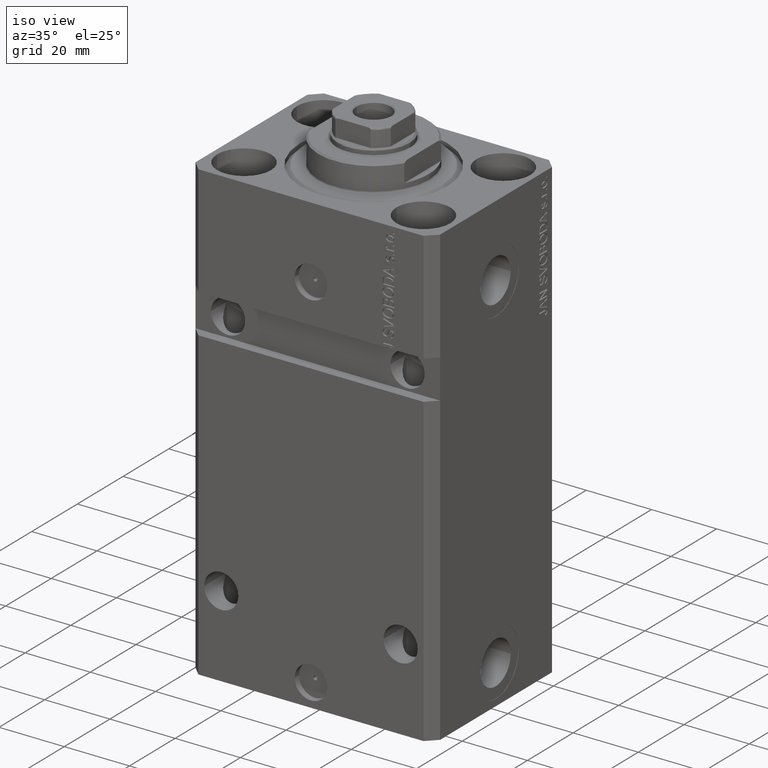
[diagram: clean part render]
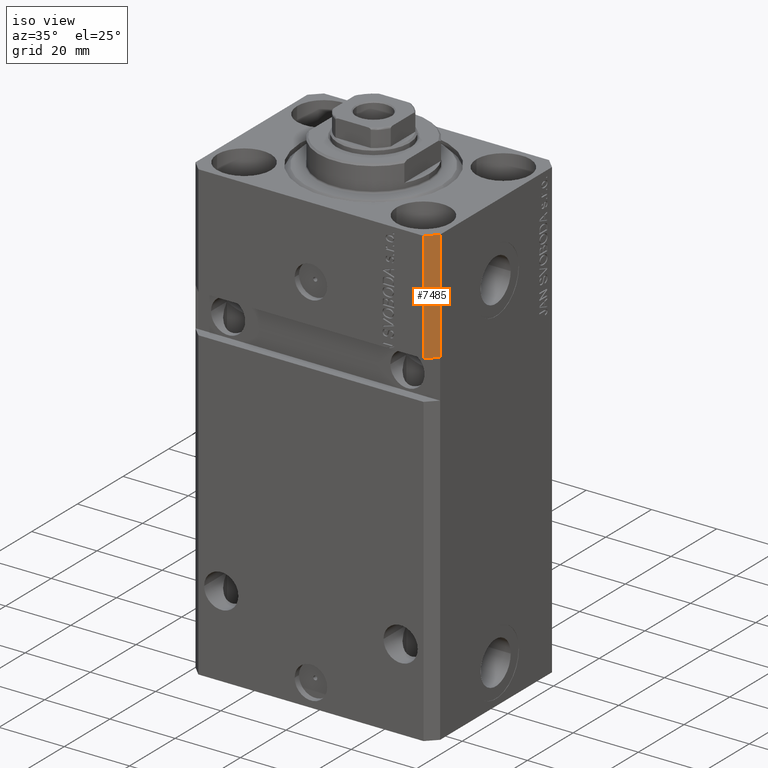
[diagram: same view with one face highlighted and labeled with its STEP entity id]
A machine part, iso view. The second image highlights one B-rep face of the part: STEP entity #7485.
In plain terms, the highlighted planar face has unit normal (0.7071, -0.7071, 0).
Its self-contained STEP definition (entity closure, byte-faithful):
#576 = VECTOR ( 'NONE', #10346, 1000.000000000000114 ) ;
#2215 = EDGE_CURVE ( 'NONE', #5500, #43848, #10576, .T. ) ;
#2231 = VECTOR ( 'NONE', #18116, 1000.000000000000114 ) ;
#4086 = AXIS2_PLACEMENT_3D ( 'NONE', #24175, #18810, #47649 ) ;
#4553 = VERTEX_POINT ( 'NONE', #35887 ) ;
#5051 = EDGE_CURVE ( 'NONE', #6303, #43848, #28868, .T. ) ;
#5500 = VERTEX_POINT ( 'NONE', #8424 ) ;
#5874 = DIRECTION ( 'NONE',  ( 0.000000000000000000, 0.000000000000000000, 1.000000000000000000 ) ) ;
#6120 = CARTESIAN_POINT ( 'NONE',  ( 37.49999999999999289, -24.50000000000000000, -140.0000000000000000 ) ) ;
#6303 = VERTEX_POINT ( 'NONE', #37038 ) ;
#7485 = ADVANCED_FACE ( 'NONE', ( #46221 ), #13040, .T. ) ;
#8424 = CARTESIAN_POINT ( 'NONE',  ( 34.49999999999999289, -27.49999999999999645, 0.000000000000000000 ) ) ;
#10346 = DIRECTION ( 'NONE',  ( 0.7071067811865474617, 0.7071067811865474617, 0.000000000000000000 ) ) ;
#10576 = LINE ( 'NONE', #10816, #576 ) ;
#10816 = CARTESIAN_POINT ( 'NONE',  ( 34.49999999999999289, -27.49999999999999645, 0.000000000000000000 ) ) ;
#13040 = PLANE ( 'NONE',  #4086 ) ;
#15088 = CARTESIAN_POINT ( 'NONE',  ( 34.49999999999999289, -27.49999999999999645, -140.0000000000000000 ) ) ;
#16022 = ORIENTED_EDGE ( 'NONE', *, *, #5051, .T. ) ;
#18116 = DIRECTION ( 'NONE',  ( -0.7071067811865474617, -0.7071067811865474617, -6.542051911182397555E-17 ) ) ;
#18810 = DIRECTION ( 'NONE',  ( 0.7071067811865475727, -0.7071067811865475727, 0.000000000000000000 ) ) ;
#19469 = EDGE_LOOP ( 'NONE', ( #25606, #16022, #40339, #47155 ) ) ;
#24175 = CARTESIAN_POINT ( 'NONE',  ( 34.49999999999999289, -27.49999999999999645, -140.0000000000000000 ) ) ;
#24451 = EDGE_CURVE ( 'NONE', #4553, #5500, #40752, .T. ) ;
#25428 = VECTOR ( 'NONE', #30101, 1000.000000000000000 ) ;
#25606 = ORIENTED_EDGE ( 'NONE', *, *, #27976, .F. ) ;
#27976 = EDGE_CURVE ( 'NONE', #6303, #4553, #29258, .T. ) ;
#28868 = LINE ( 'NONE', #6120, #31033 ) ;
#29258 = LINE ( 'NONE', #47901, #2231 ) ;
#30101 = DIRECTION ( 'NONE',  ( 0.000000000000000000, 0.000000000000000000, 1.000000000000000000 ) ) ;
#31033 = VECTOR ( 'NONE', #5874, 1000.000000000000000 ) ;
#33784 = CARTESIAN_POINT ( 'NONE',  ( 37.49999999999999289, -24.50000000000000000, 0.000000000000000000 ) ) ;
#35887 = CARTESIAN_POINT ( 'NONE',  ( 34.49999999999999289, -27.49999999999999289, -33.99999999999999289 ) ) ;
#37038 = CARTESIAN_POINT ( 'NONE',  ( 37.49999999999999289, -24.49999999999999289, -33.99999999999999289 ) ) ;
#40339 = ORIENTED_EDGE ( 'NONE', *, *, #2215, .F. ) ;
#40752 = LINE ( 'NONE', #15088, #25428 ) ;
#43848 = VERTEX_POINT ( 'NONE', #33784 ) ;
#46221 = FACE_OUTER_BOUND ( 'NONE', #19469, .T. ) ;
#47155 = ORIENTED_EDGE ( 'NONE', *, *, #24451, .F. ) ;
#47649 = DIRECTION ( 'NONE',  ( 0.7071067811865474617, 0.7071067811865474617, 0.000000000000000000 ) ) ;
#47901 = CARTESIAN_POINT ( 'NONE',  ( 34.49999999999998579, -27.50000000000000000, -34.00000000000000000 ) ) ;